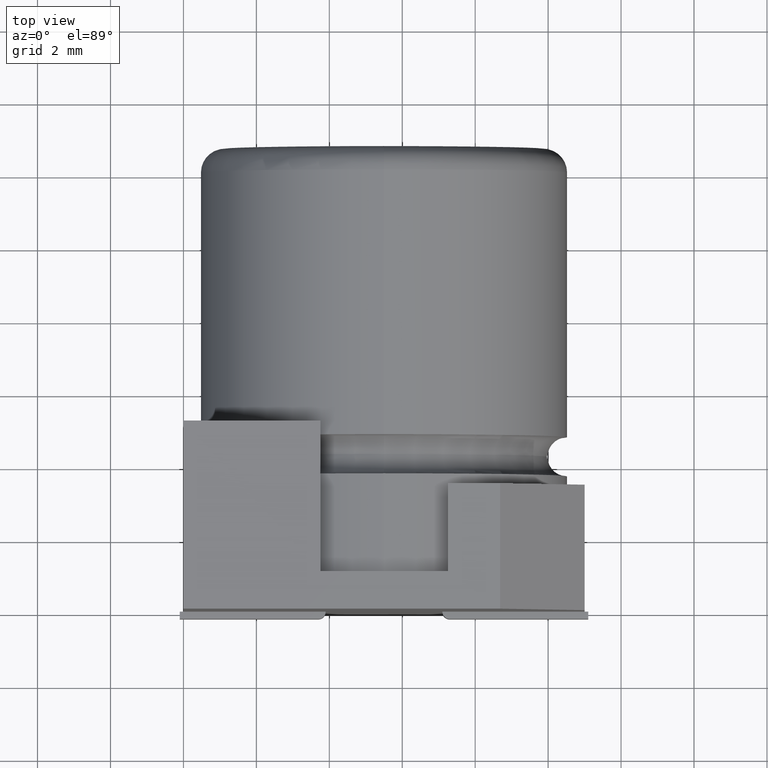
[diagram: clean part render]
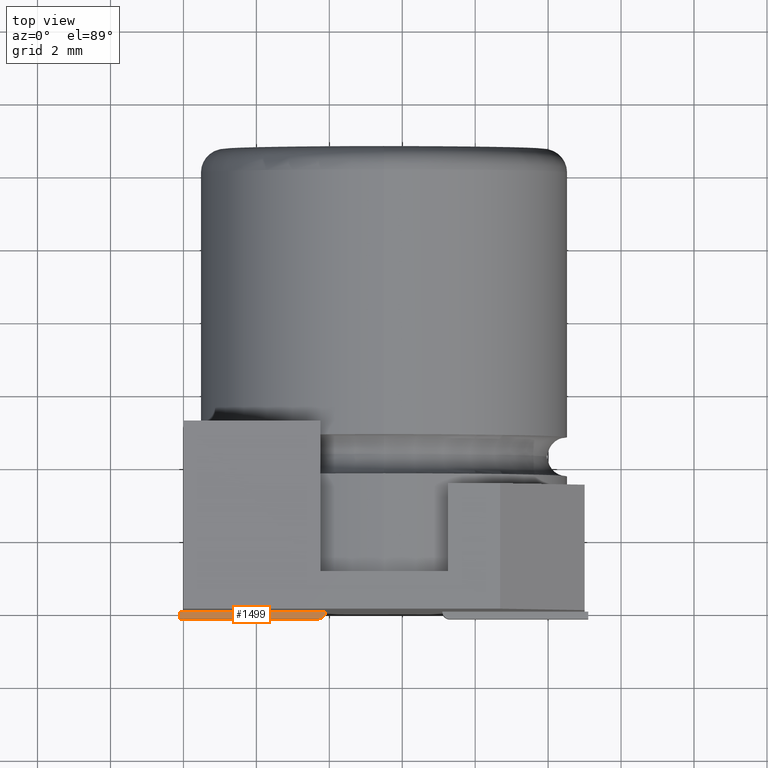
[diagram: same view with one face highlighted and labeled with its STEP entity id]
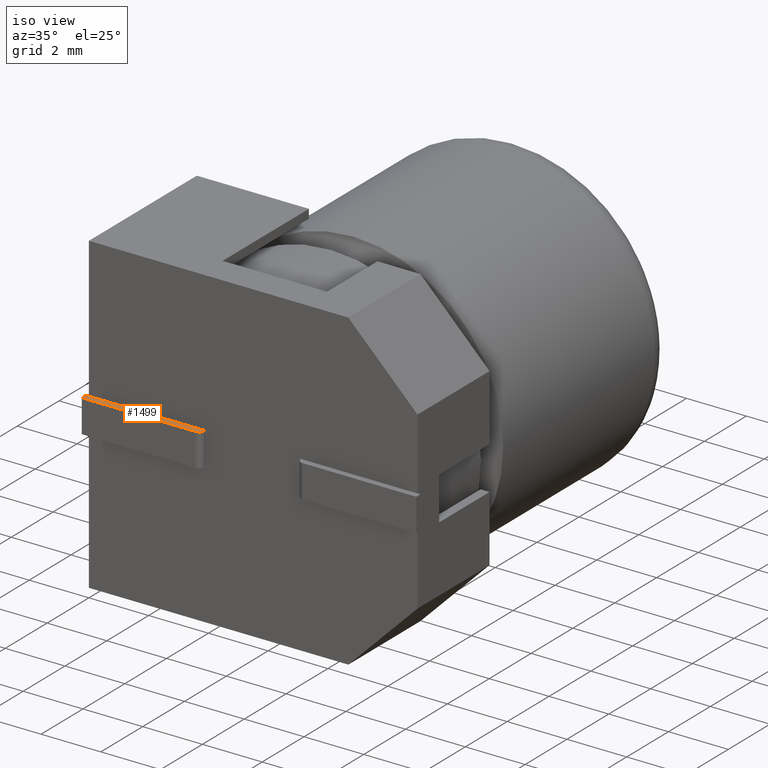
[diagram: same view with one face highlighted and labeled with its STEP entity id]
A machine part, top view. The second image highlights one B-rep face of the part: STEP entity #1499.
A second angle (iso view) of the same face is appended — the face is thin or edge-on in the first view.
In plain terms, the highlighted planar face has unit normal (0, 0, -1).
Its self-contained STEP definition (entity closure, byte-faithful):
#153 = CARTESIAN_POINT ( 'NONE',  ( 3.899999999999999000, -0.2000000000000000100, -4.699999999999996600 ) ) ;
#237 = AXIS2_PLACEMENT_3D ( 'NONE', #1950, #375, #362 ) ;
#259 = EDGE_CURVE ( 'NONE', #2432, #1897, #1100, .T. ) ;
#362 = DIRECTION ( 'NONE',  ( -1.000000000000000000, 0.0000000000000000000, -2.168404344971010600E-016 ) ) ;
#375 = DIRECTION ( 'NONE',  ( 2.168404344971010600E-016, 0.0000000000000000000, -1.000000000000000000 ) ) ;
#415 = DIRECTION ( 'NONE',  ( -1.000000000000000000, -0.0000000000000000000, -2.168404344971010300E-016 ) ) ;
#427 = VECTOR ( 'NONE', #2957, 1000.000000000000000 ) ;
#633 = EDGE_CURVE ( 'NONE', #824, #2851, #2609, .T. ) ;
#643 = ORIENTED_EDGE ( 'NONE', *, *, #2884, .F. ) ;
#666 = CARTESIAN_POINT ( 'NONE',  ( 3.899999999999999000, 0.0000000000000000000, -4.699999999999996600 ) ) ;
#771 = ORIENTED_EDGE ( 'NONE', *, *, #1968, .T. ) ;
#773 = CARTESIAN_POINT ( 'NONE',  ( 0.0000000000000000000, 0.0000000000000000000, -4.699999999999997500 ) ) ;
#824 = VERTEX_POINT ( 'NONE', #1305 ) ;
#995 = CARTESIAN_POINT ( 'NONE',  ( -0.09999999999999890900, -0.2000000000000000100, -4.699999999999997500 ) ) ;
#1094 = DIRECTION ( 'NONE',  ( -1.000000000000000000, 0.0000000000000000000, 0.0000000000000000000 ) ) ;
#1100 = LINE ( 'NONE', #2581, #2053 ) ;
#1254 = CARTESIAN_POINT ( 'NONE',  ( -0.09999999999999890900, -0.0000000000000000000, -4.699999999999997500 ) ) ;
#1305 = CARTESIAN_POINT ( 'NONE',  ( 3.699999999999998800, -0.2000000000000000100, -4.699999999999996600 ) ) ;
#1338 = EDGE_CURVE ( 'NONE', #824, #3358, #2142, .T. ) ;
#1499 = ADVANCED_FACE ( 'NONE', ( #1676 ), #1688, .F. ) ;
#1625 = LINE ( 'NONE', #995, #2323 ) ;
#1676 = FACE_OUTER_BOUND ( 'NONE', #2916, .T. ) ;
#1688 = PLANE ( 'NONE',  #237 ) ;
#1897 = VERTEX_POINT ( 'NONE', #1254 ) ;
#1950 = CARTESIAN_POINT ( 'NONE',  ( 3.899999999999999000, -0.2000000000000000100, -4.699999999999996600 ) ) ;
#1968 = EDGE_CURVE ( 'NONE', #3358, #2432, #2450, .T. ) ;
#2047 = DIRECTION ( 'NONE',  ( -0.0000000000000000000, 1.000000000000000000, -0.0000000000000000000 ) ) ;
#2053 = VECTOR ( 'NONE', #3087, 1000.000000000000000 ) ;
#2062 = CARTESIAN_POINT ( 'NONE',  ( -0.09999999999999890900, -0.2000000000000000100, -4.699999999999997500 ) ) ;
#2142 = CIRCLE ( 'NONE', #2928, 0.2000000000000000900 ) ;
#2323 = VECTOR ( 'NONE', #2047, 1000.000000000000000 ) ;
#2334 = VECTOR ( 'NONE', #415, 1000.000000000000000 ) ;
#2432 = VERTEX_POINT ( 'NONE', #773 ) ;
#2433 = CARTESIAN_POINT ( 'NONE',  ( 3.699999999999998800, 0.0000000000000000000, -4.699999999999996600 ) ) ;
#2450 = LINE ( 'NONE', #3181, #427 ) ;
#2538 = ORIENTED_EDGE ( 'NONE', *, *, #259, .T. ) ;
#2581 = CARTESIAN_POINT ( 'NONE',  ( 3.899999999999999000, 0.0000000000000000000, -4.699999999999996600 ) ) ;
#2609 = LINE ( 'NONE', #153, #2334 ) ;
#2851 = VERTEX_POINT ( 'NONE', #2062 ) ;
#2884 = EDGE_CURVE ( 'NONE', #2851, #1897, #1625, .T. ) ;
#2916 = EDGE_LOOP ( 'NONE', ( #2941, #3160, #771, #2538, #643 ) ) ;
#2928 = AXIS2_PLACEMENT_3D ( 'NONE', #2433, #2947, #1094 ) ;
#2941 = ORIENTED_EDGE ( 'NONE', *, *, #633, .F. ) ;
#2947 = DIRECTION ( 'NONE',  ( -2.168404344971010600E-016, -0.0000000000000000000, 1.000000000000000000 ) ) ;
#2957 = DIRECTION ( 'NONE',  ( -1.000000000000000000, -0.0000000000000000000, -2.168404344971010300E-016 ) ) ;
#3087 = DIRECTION ( 'NONE',  ( -1.000000000000000000, -0.0000000000000000000, -2.168404344971010300E-016 ) ) ;
#3160 = ORIENTED_EDGE ( 'NONE', *, *, #1338, .T. ) ;
#3181 = CARTESIAN_POINT ( 'NONE',  ( 3.899999999999999000, 0.0000000000000000000, -4.699999999999996600 ) ) ;
#3358 = VERTEX_POINT ( 'NONE', #666 ) ;